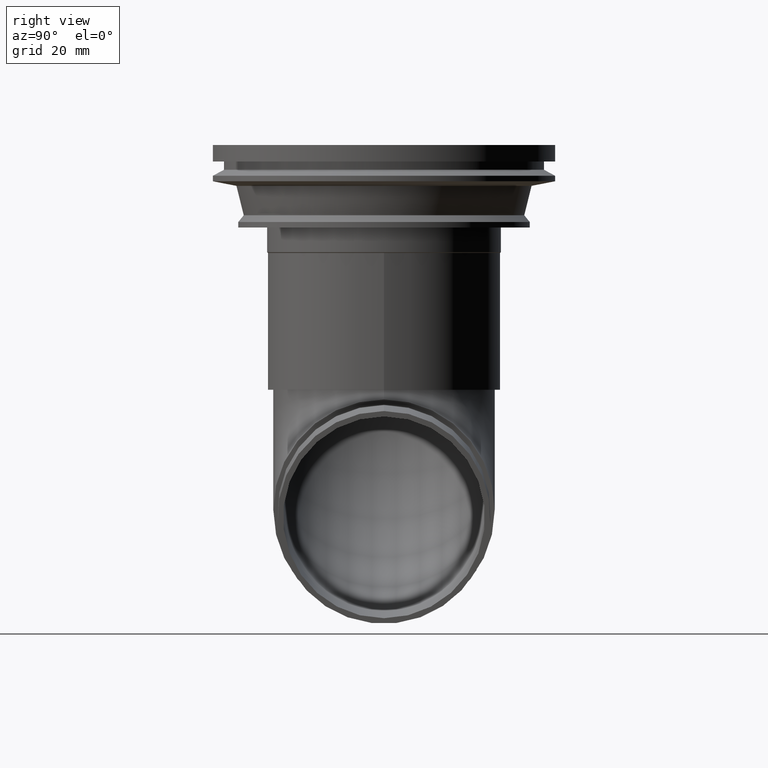
[diagram: clean part render]
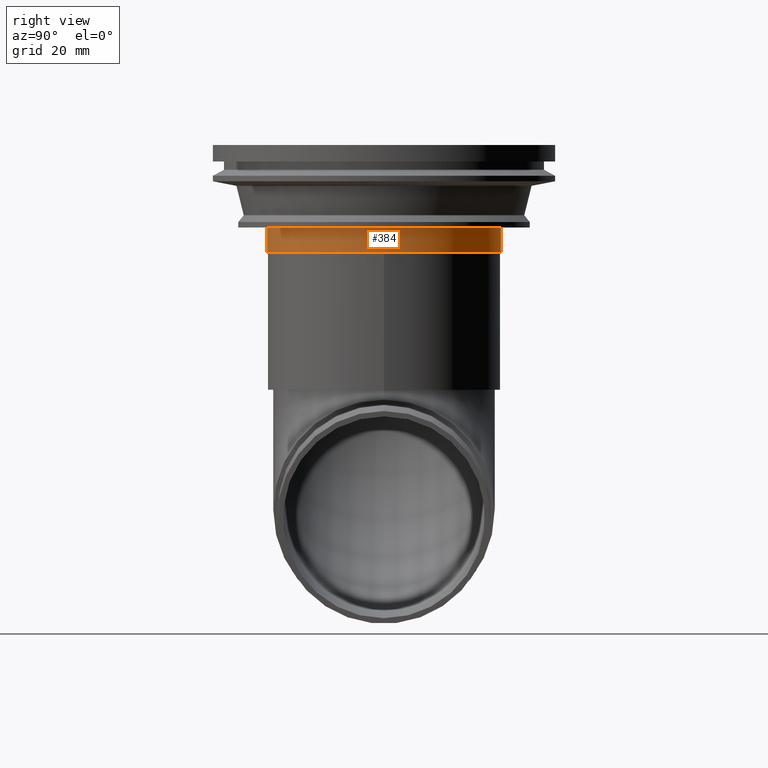
[diagram: same view with one face highlighted and labeled with its STEP entity id]
A machine part, right view. The second image highlights one B-rep face of the part: STEP entity #384.
In plain terms, the highlighted cylindrical surface (bore or boss wall) has radius 42.5 mm, axis along (0, 0, -1).
Its self-contained STEP definition (entity closure, byte-faithful):
#25=CYLINDRICAL_SURFACE('',#448,42.5);
#73=ORIENTED_EDGE('',*,*,#131,.T.);
#74=ORIENTED_EDGE('',*,*,#129,.F.);
#129=EDGE_CURVE('',#164,#164,#199,.T.);
#131=EDGE_CURVE('',#166,#166,#201,.T.);
#164=VERTEX_POINT('',#674);
#166=VERTEX_POINT('',#679);
#199=CIRCLE('',#446,42.5);
#201=CIRCLE('',#449,42.5);
#248=EDGE_LOOP('',(#73));
#249=EDGE_LOOP('',(#74));
#318=FACE_BOUND('',#248,.T.);
#319=FACE_BOUND('',#249,.T.);
#384=ADVANCED_FACE('',(#318,#319),#25,.T.);
#446=AXIS2_PLACEMENT_3D('',#673,#546,#547);
#448=AXIS2_PLACEMENT_3D('',#677,#550,#551);
#449=AXIS2_PLACEMENT_3D('',#678,#552,#553);
#546=DIRECTION('',(0.,0.,-1.));
#547=DIRECTION('',(-1.,0.,0.));
#550=DIRECTION('',(0.,0.,-1.));
#551=DIRECTION('',(-1.,0.,0.));
#552=DIRECTION('',(0.,0.,-1.));
#553=DIRECTION('',(-1.,0.,0.));
#673=CARTESIAN_POINT('',(0.,0.,-39.));
#674=CARTESIAN_POINT('',(-42.5,0.,-39.));
#677=CARTESIAN_POINT('',(0.,0.,-5.));
#678=CARTESIAN_POINT('',(0.,0.,-30.));
#679=CARTESIAN_POINT('',(-42.5,0.,-30.));